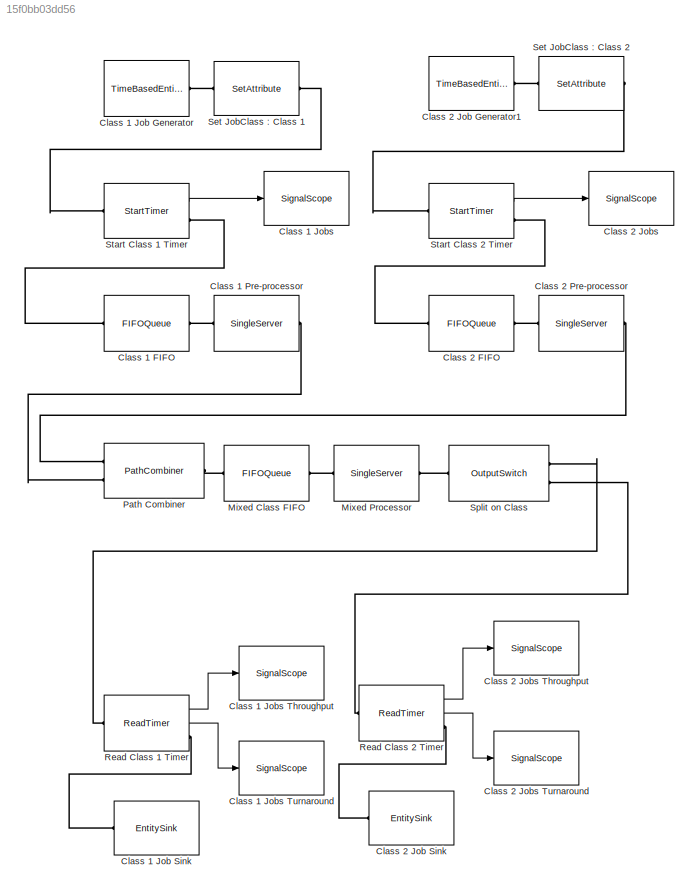
MODEL slx_15f0bb03dd56
KIND model
BLOCK [FIFOQueue] Class 1 FIFO
  Capacity = inf
  Ports = [0, 0, 0, 0, 0, 1, 1]
BLOCK [TimeBasedEntityGenerator] Class 1 Job Generator
  EntityType = Standard
  GenerateEntityAtSimulationStart = off
  Period = 20
  Ports = [0, 0, 0, 0, 0, 0, 1]
BLOCK [EntitySink] Class 1 Job Sink
  Ports = [0, 0, 0, 0, 0, 1]
BLOCK [SignalScope] Class 1 Jobs
  CopyFcn = des.scope.CallbackSupport('seCopyFcn',gcbh)
  DeleteFcn = des.scope.CallbackSupport('seDeleteFcn',gcbh)
  InputPortMap = u0
  LoadFcn = des.scope.CallbackSupport('seLoadFcn',gcbh)
  NameChangeFcn = des.scope.CallbackSupport('seNameChangeFcn',gcbh)
  OpenFcn = des.scope.CallbackSupport('seOpenFcn',gcbh)
  Ports = [1]
  PreSaveFcn = des.scope.CallbackSupport('sePreSaveFcn',gcbh)
  StartFcn = des.scope.CallbackSupport('seStartFcn',gcbh)
  StopFcn = des.scope.CallbackSupport('seStopFcn',gcbh)
  Title = Class 1 Job Submission
  XLabel = time
  XLimitExceededOption = Keep axis limits unchanged
  XMax = 200
  YLabel = jobs submitted
  YLimitExceededOption = Keep axis limits unchanged
  YMax = 20
BLOCK [SignalScope] Class 1 Jobs Throughput
  CopyFcn = des.scope.CallbackSupport('seCopyFcn',gcbh)
  DeleteFcn = des.scope.CallbackSupport('seDeleteFcn',gcbh)
  InputPortMap = u0
  LoadFcn = des.scope.CallbackSupport('seLoadFcn',gcbh)
  NameChangeFcn = des.scope.CallbackSupport('seNameChangeFcn',gcbh)
  OpenFcn = des.scope.CallbackSupport('seOpenFcn',gcbh)
  Ports = [1]
  PreSaveFcn = des.scope.CallbackSupport('sePreSaveFcn',gcbh)
  StartFcn = des.scope.CallbackSupport('seStartFcn',gcbh)
  StopFcn = des.scope.CallbackSupport('seStopFcn',gcbh)
  Title = Throughput for Class 1 Jobs
  XLabel = time
  XLimitExceededOption = Keep axis limits unchanged
  XMax = 200
  YLabel = jobs processed
  YLimitExceededOption = Keep axis limits unchanged
  YMax = 20
BLOCK [SignalScope] Class 1 Jobs Turnaround 
  CopyFcn = des.scope.CallbackSupport('seCopyFcn',gcbh)
  DeleteFcn = des.scope.CallbackSupport('seDeleteFcn',gcbh)
  InputPortMap = u0
  LoadFcn = des.scope.CallbackSupport('seLoadFcn',gcbh)
  NameChangeFcn = des.scope.CallbackSupport('seNameChangeFcn',gcbh)
  OpenFcn = des.scope.CallbackSupport('seOpenFcn',gcbh)
  Ports = [1]
  PreSaveFcn = des.scope.CallbackSupport('sePreSaveFcn',gcbh)
  StartFcn = des.scope.CallbackSupport('seStartFcn',gcbh)
  StopFcn = des.scope.CallbackSupport('seStopFcn',gcbh)
  Title = Turnaround time for Class 1 Jobs
  XLabel = time
  XMax = 200
  YLabel = elapsed time (Class 1)
  YLimitExceededOption = Keep axis limits unchanged
  YMax = 30
BLOCK [SingleServer] Class 1 Pre-processor
  Ports = [0, 0, 0, 0, 0, 1, 1]
  ServiceTime = 5
BLOCK [FIFOQueue] Class 2 FIFO
  Capacity = inf
  Ports = [0, 0, 0, 0, 0, 1, 1]
BLOCK [TimeBasedEntityGenerator] Class 2 Job Generator1 
  EntityType = Standard
  GenerateEntityAtSimulationStart = off
  Period = 21
  Ports = [0, 0, 0, 0, 0, 0, 1]
BLOCK [EntitySink] Class 2 Job Sink
  Ports = [0, 0, 0, 0, 0, 1]
BLOCK [SignalScope] Class 2 Jobs
  CopyFcn = des.scope.CallbackSupport('seCopyFcn',gcbh)
  DeleteFcn = des.scope.CallbackSupport('seDeleteFcn',gcbh)
  InputPortMap = u0
  LoadFcn = des.scope.CallbackSupport('seLoadFcn',gcbh)
  NameChangeFcn = des.scope.CallbackSupport('seNameChangeFcn',gcbh)
  OpenFcn = des.scope.CallbackSupport('seOpenFcn',gcbh)
  Ports = [1]
  PreSaveFcn = des.scope.CallbackSupport('sePreSaveFcn',gcbh)
  StartFcn = des.scope.CallbackSupport('seStartFcn',gcbh)
  StopFcn = des.scope.CallbackSupport('seStopFcn',gcbh)
  Title = Class 2 Job Submission
  XLabel = time
  XLimitExceededOption = Keep axis limits unchanged
  XMax = 200
  YLabel = jobs submitted
  YLimitExceededOption = Keep axis limits unchanged
  YMax = 20
BLOCK [SignalScope] Class 2 Jobs Throughput
  CopyFcn = des.scope.CallbackSupport('seCopyFcn',gcbh)
  DeleteFcn = des.scope.CallbackSupport('seDeleteFcn',gcbh)
  InputPortMap = u0
  LoadFcn = des.scope.CallbackSupport('seLoadFcn',gcbh)
  NameChangeFcn = des.scope.CallbackSupport('seNameChangeFcn',gcbh)
  OpenFcn = des.scope.CallbackSupport('seOpenFcn',gcbh)
  Ports = [1]
  PreSaveFcn = des.scope.CallbackSupport('sePreSaveFcn',gcbh)
  StartFcn = des.scope.CallbackSupport('seStartFcn',gcbh)
  StopFcn = des.scope.CallbackSupport('seStopFcn',gcbh)
  Title = Throughput for Class 2 Jobs
  XLabel = time
  XLimitExceededOption = Keep axis limits unchanged
  XMax = 200
  YLabel = jobs processed
  YLimitExceededOption = Keep axis limits unchanged
  YMax = 20
BLOCK [SignalScope] Class 2 Jobs Turnaround
  CopyFcn = des.scope.CallbackSupport('seCopyFcn',gcbh)
  DeleteFcn = des.scope.CallbackSupport('seDeleteFcn',gcbh)
  InputPortMap = u0
  LoadFcn = des.scope.CallbackSupport('seLoadFcn',gcbh)
  NameChangeFcn = des.scope.CallbackSupport('seNameChangeFcn',gcbh)
  OpenFcn = des.scope.CallbackSupport('seOpenFcn',gcbh)
  Ports = [1]
  PreSaveFcn = des.scope.CallbackSupport('sePreSaveFcn',gcbh)
  StartFcn = des.scope.CallbackSupport('seStartFcn',gcbh)
  StopFcn = des.scope.CallbackSupport('seStopFcn',gcbh)
  Title = Turnaround time for Class 2 Jobs
  XLabel = time
  XMax = 200
  YLabel = elapsed time (Class 2)
  YLimitExceededOption = Keep axis limits unchanged
  YMax = 30
BLOCK [SingleServer] Class 2 Pre-processor
  Ports = [0, 0, 0, 0, 0, 1, 1]
  ServiceTime = 7
BLOCK [FIFOQueue] Mixed Class FIFO
  Capacity = inf
  Ports = [0, 0, 0, 0, 0, 1, 1]
BLOCK [SingleServer] Mixed Processor
  Ports = [0, 0, 0, 0, 0, 1, 1]
  ServiceTime = 10
BLOCK [PathCombiner] Path Combiner
  NumberInputPorts = 2
  Ports = [0, 0, 0, 0, 0, 2, 1]
BLOCK [ReadTimer] Read Class 1 Timer
  OutputPortMap = o1,o2
  Ports = [0, 2, 0, 0, 0, 1, 1]
  StatTimeElapsed = on
  StatTimerNumberDeparted = on
BLOCK [ReadTimer] Read Class 2 Timer
  OutputPortMap = o1,o2
  Ports = [0, 2, 0, 0, 0, 1, 1]
  StatTimeElapsed = on
  StatTimerNumberDeparted = on
BLOCK [SetAttribute] Set JobClass : Class 1
  AttributeName = JobClass
  AttributeTreatAsVector = 0
  EvaluatedAttributeValue = { 1}
  Ports = [0, 0, 0, 0, 0, 1, 1]
BLOCK [SetAttribute] Set JobClass : Class 2
  AttributeName = JobClass
  AttributeTreatAsVector = 0
  AttributeValue = 2
  EvaluatedAttributeValue = { 2}
  Ports = [0, 0, 0, 0, 0, 1, 1]
BLOCK [OutputSwitch] Split on Class
  AttributeName = JobClass
  NumberOutputPorts = 2
  Ports = [0, 0, 0, 0, 0, 1, 2]
  SwitchingCriterion = From attribute
BLOCK [StartTimer] Start Class 1 Timer
  OutputPortMap = o0
  Ports = [0, 1, 0, 0, 0, 1, 1]
  StatNumberDeparted = on
BLOCK [StartTimer] Start Class 2 Timer
  OutputPortMap = o0
  Ports = [0, 1, 0, 0, 0, 1, 1]
  StatNumberDeparted = on
LINE Read Class 1 Timer:1 -> Class 1 Jobs Throughput:1
LINE Read Class 1 Timer:2 -> Class 1 Jobs Turnaround :1
LINE Read Class 2 Timer:1 -> Class 2 Jobs Throughput:1
LINE Read Class 2 Timer:2 -> Class 2 Jobs Turnaround:1
LINE Start Class 1 Timer:1 -> Class 1 Jobs:1
LINE Start Class 2 Timer:1 -> Class 2 Jobs:1
PLINE Class 1 FIFO:LConn1 -- Start Class 1 Timer:RConn1
PLINE Class 1 FIFO:RConn1 -- Class 1 Pre-processor:LConn1
PLINE Class 1 Job Generator:RConn1 -- Set JobClass : Class 1:LConn1
PLINE Class 1 Job Sink:LConn1 -- Read Class 1 Timer:RConn1
PLINE Class 1 Pre-processor:RConn1 -- Path Combiner:LConn2
PLINE Class 2 FIFO:LConn1 -- Start Class 2 Timer:RConn1
PLINE Class 2 FIFO:RConn1 -- Class 2 Pre-processor:LConn1
PLINE Class 2 Job Generator1 :RConn1 -- Set JobClass : Class 2:LConn1
PLINE Class 2 Job Sink:LConn1 -- Read Class 2 Timer:RConn1
PLINE Class 2 Pre-processor:RConn1 -- Path Combiner:LConn1
PLINE Mixed Class FIFO:LConn1 -- Path Combiner:RConn1
PLINE Mixed Class FIFO:RConn1 -- Mixed Processor:LConn1
PLINE Mixed Processor:RConn1 -- Split on Class:LConn1
PLINE Read Class 1 Timer:LConn1 -- Split on Class:RConn1
PLINE Read Class 2 Timer:LConn1 -- Split on Class:RConn2
PLINE Set JobClass : Class 1:RConn1 -- Start Class 1 Timer:LConn1
PLINE Set JobClass : Class 2:RConn1 -- Start Class 2 Timer:LConn1
